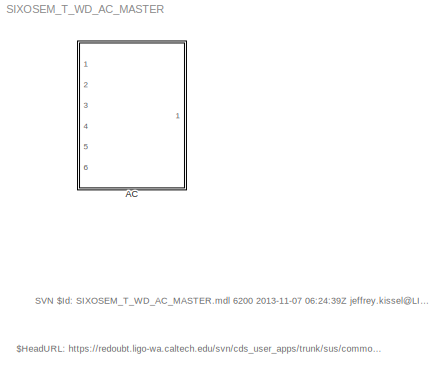
MODEL SIXOSEM_T_WD_AC_MASTER
KIND library
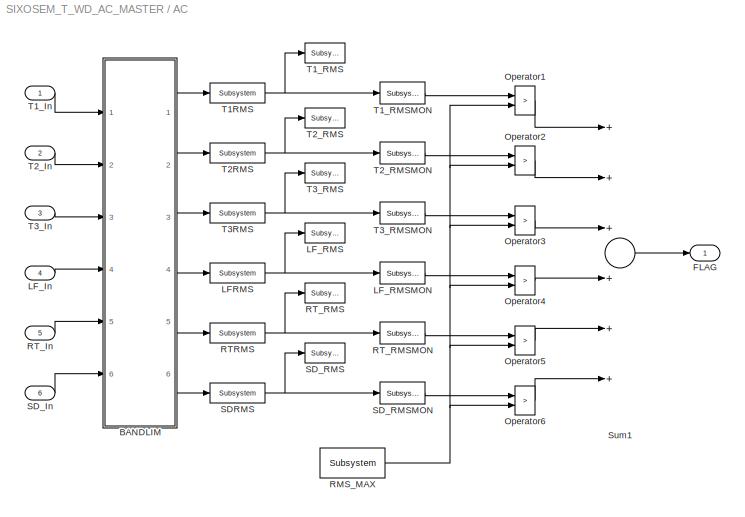
BLOCK [SubSystem] AC
  FunctionWithSeparateData = off
  MaskHideContents = off
  MinAlgLoopOccurrences = off
  Opaque = off
  Ports = [6, 1]
  PropExecContextOutsideSubsystem = off
  RTWSystemCode = Auto
  RequestExecContextInheritance = off
  SID = 1
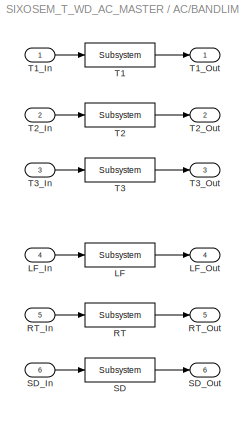
BLOCK [SubSystem] AC/BANDLIM
  FunctionWithSeparateData = off
  MaskHideContents = off
  MinAlgLoopOccurrences = off
  Opaque = off
  Ports = [6, 6]
  PropExecContextOutsideSubsystem = off
  RTWSystemCode = Auto
  RequestExecContextInheritance = off
  SID = 8
BLOCK [Reference] AC/BANDLIM/LF  REF=cdsFilt/Subsystem
  AttributesFormatString = %<Tag>
  Description = Purpose:                                                                                                                                                                                                                                  \nStandard CDS IIR filter module.                                                                                                                                     ...<+1302ch>  <repeated x6 — deduplicated; at blocks: LF, RT, SD, T1, T2, T3>
  FunctionWithSeparateData = off
  Ports = [1, 1]
  RTWMemSecDataConstants = Inherit from model
  RTWMemSecDataInternal = Inherit from model
  RTWMemSecDataParameters = Inherit from model
  RTWMemSecFuncExecute = Inherit from model
  RTWMemSecFuncInitTerm = Inherit from model
  SID = 18
  ShowPortLabels = FromPortIcon
  SourceBlock = cdsFilt/Subsystem
  SourceType = SubSystem
  SystemSampleTime = -1
  Tag = cdsFilt
BLOCK [Inport] AC/BANDLIM/LF_In
  IconDisplay = Port number
  Port = 4
  SID = 12
BLOCK [Outport] AC/BANDLIM/LF_Out
  IconDisplay = Port number
  Port = 4
  SID = 24
BLOCK [Reference] AC/BANDLIM/RT  REF=cdsFilt/Subsystem
  AttributesFormatString = %<Tag>
  FunctionWithSeparateData = off
  Ports = [1, 1]
  RTWMemSecDataConstants = Inherit from model
  RTWMemSecDataInternal = Inherit from model
  RTWMemSecDataParameters = Inherit from model
  RTWMemSecFuncExecute = Inherit from model
  RTWMemSecFuncInitTerm = Inherit from model
  SID = 19
  ShowPortLabels = FromPortIcon
  SourceBlock = cdsFilt/Subsystem
  SourceType = SubSystem
  SystemSampleTime = -1
  Tag = cdsFilt
BLOCK [Inport] AC/BANDLIM/RT_In
  IconDisplay = Port number
  Port = 5
  SID = 13
BLOCK [Outport] AC/BANDLIM/RT_Out
  IconDisplay = Port number
  Port = 5
  SID = 25
BLOCK [Reference] AC/BANDLIM/SD  REF=cdsFilt/Subsystem
  AttributesFormatString = %<Tag>
  FunctionWithSeparateData = off
  Ports = [1, 1]
  RTWMemSecDataConstants = Inherit from model
  RTWMemSecDataInternal = Inherit from model
  RTWMemSecDataParameters = Inherit from model
  RTWMemSecFuncExecute = Inherit from model
  RTWMemSecFuncInitTerm = Inherit from model
  SID = 20
  ShowPortLabels = FromPortIcon
  SourceBlock = cdsFilt/Subsystem
  SourceType = SubSystem
  SystemSampleTime = -1
  Tag = cdsFilt
BLOCK [Inport] AC/BANDLIM/SD_In
  IconDisplay = Port number
  Port = 6
  SID = 14
BLOCK [Outport] AC/BANDLIM/SD_Out
  IconDisplay = Port number
  Port = 6
  SID = 26
BLOCK [Reference] AC/BANDLIM/T1  REF=cdsFilt/Subsystem
  AttributesFormatString = %<Tag>
  FunctionWithSeparateData = off
  Ports = [1, 1]
  RTWMemSecDataConstants = Inherit from model
  RTWMemSecDataInternal = Inherit from model
  RTWMemSecDataParameters = Inherit from model
  RTWMemSecFuncExecute = Inherit from model
  RTWMemSecFuncInitTerm = Inherit from model
  SID = 15
  ShowPortLabels = FromPortIcon
  SourceBlock = cdsFilt/Subsystem
  SourceType = SubSystem
  SystemSampleTime = -1
  Tag = cdsFilt
BLOCK [Inport] AC/BANDLIM/T1_In
  IconDisplay = Port number
  SID = 9
BLOCK [Outport] AC/BANDLIM/T1_Out
  IconDisplay = Port number
  SID = 21
BLOCK [Reference] AC/BANDLIM/T2  REF=cdsFilt/Subsystem
  AttributesFormatString = %<Tag>
  FunctionWithSeparateData = off
  Ports = [1, 1]
  RTWMemSecDataConstants = Inherit from model
  RTWMemSecDataInternal = Inherit from model
  RTWMemSecDataParameters = Inherit from model
  RTWMemSecFuncExecute = Inherit from model
  RTWMemSecFuncInitTerm = Inherit from model
  SID = 16
  ShowPortLabels = FromPortIcon
  SourceBlock = cdsFilt/Subsystem
  SourceType = SubSystem
  SystemSampleTime = -1
  Tag = cdsFilt
BLOCK [Inport] AC/BANDLIM/T2_In
  IconDisplay = Port number
  Port = 2
  SID = 10
BLOCK [Outport] AC/BANDLIM/T2_Out
  IconDisplay = Port number
  Port = 2
  SID = 22
BLOCK [Reference] AC/BANDLIM/T3  REF=cdsFilt/Subsystem
  AttributesFormatString = %<Tag>
  FunctionWithSeparateData = off
  Ports = [1, 1]
  RTWMemSecDataConstants = Inherit from model
  RTWMemSecDataInternal = Inherit from model
  RTWMemSecDataParameters = Inherit from model
  RTWMemSecFuncExecute = Inherit from model
  RTWMemSecFuncInitTerm = Inherit from model
  SID = 17
  ShowPortLabels = FromPortIcon
  SourceBlock = cdsFilt/Subsystem
  SourceType = SubSystem
  SystemSampleTime = -1
  Tag = cdsFilt
BLOCK [Inport] AC/BANDLIM/T3_In
  IconDisplay = Port number
  Port = 3
  SID = 11
BLOCK [Outport] AC/BANDLIM/T3_Out
  IconDisplay = Port number
  Port = 3
  SID = 23
BLOCK [Outport] AC/FLAG
  IconDisplay = Port number
  SID = 53
BLOCK [Reference] AC/LFRMS  REF=cdsRms/Subsystem
  AttributesFormatString = %<Tag>
  Description = Purpose:                                   \nCalculate an RMS based on the input signal.
  FunctionWithSeparateData = off
  Ports = [1, 1]
  RTWMemSecDataConstants = Inherit from model
  RTWMemSecDataInternal = Inherit from model
  RTWMemSecDataParameters = Inherit from model
  RTWMemSecFuncExecute = Inherit from model
  RTWMemSecFuncInitTerm = Inherit from model
  SID = 36
  ShowPortLabels = FromPortIcon
  SourceBlock = cdsRms/Subsystem
  SourceType = SubSystem
  SystemSampleTime = -1
  Tag = cdsRms
BLOCK [Inport] AC/LF_In
  IconDisplay = Port number
  Port = 4
  SID = 5
BLOCK [Reference] AC/LF_RMS  REF=cdsTP/Subsystem
  AttributesFormatString = %<Tag>
  FunctionWithSeparateData = off
  Ports = [1]
  RTWMemSecDataConstants = Inherit from model
  RTWMemSecDataInternal = Inherit from model
  RTWMemSecDataParameters = Inherit from model
  RTWMemSecFuncExecute = Inherit from model
  RTWMemSecFuncInitTerm = Inherit from model
  SID = 37
  ShowPortLabels = FromPortIcon
  SourceBlock = cdsTP/Subsystem
  SourceType = SubSystem
  SystemSampleTime = -1
  Tag = Test Point
BLOCK [Reference] AC/LF_RMSMON  REF=cdsEpicsOut/Subsystem
  AttributesFormatString = %<Tag>
  Description = Purpose:                                          \nOutput a FE signal to an EPICS channel.           \n                                                  \nOperation:                                        \nTakes input value and passes it to EPICS record.  \n                                                  \nUsage:                                            \nName the part with the desired EPICS...<+14ch>  <repeated x6 — deduplicated; at blocks: LF_RMSMON, RT_RMSMON, SD_RMSMON, T1_RMSMON, T2_RMSMON, T3_RMSMON>
  FunctionWithSeparateData = off
  Ports = [1, 1]
  RTWMemSecDataConstants = Inherit from model
  RTWMemSecDataInternal = Inherit from model
  RTWMemSecDataParameters = Inherit from model
  RTWMemSecFuncExecute = Inherit from model
  RTWMemSecFuncInitTerm = Inherit from model
  SID = 38
  ShowPortLabels = FromPortIcon
  SourceBlock = cdsEpicsOut/Subsystem
  SourceType = SubSystem
  SystemSampleTime = -1
  Tag = cdsEpicsOutput
BLOCK [RelationalOperator] AC/Operator1
  InputSameDT = off
  Operator = >
  OutDataTypeStr = boolean
  Ports = [2, 1]
  SID = 39
BLOCK [RelationalOperator] AC/Operator2
  InputSameDT = off
  Operator = >
  OutDataTypeStr = boolean
  Ports = [2, 1]
  SID = 40
  ZeroCross = off
BLOCK [RelationalOperator] AC/Operator3
  InputSameDT = off
  Operator = >
  OutDataTypeStr = boolean
  Ports = [2, 1]
  SID = 41
BLOCK [RelationalOperator] AC/Operator4
  InputSameDT = off
  Operator = >
  OutDataTypeStr = boolean
  Ports = [2, 1]
  SID = 42
BLOCK [RelationalOperator] AC/Operator5
  InputSameDT = off
  Operator = >
  OutDataTypeStr = boolean
  Ports = [2, 1]
  SID = 43
BLOCK [RelationalOperator] AC/Operator6
  InputSameDT = off
  Operator = >
  OutDataTypeStr = boolean
  Ports = [2, 1]
  SID = 44
BLOCK [Reference] AC/RMS_MAX  REF=cdsEpicsIn/Subsystem
  AttributesFormatString = %<Tag>
  Description = Purpose:                                                                              \nCreate an EPICS input channel connection to the FE realtime controls.                 \n                                                                                      \nOperation:                                                                            \nOutputs value from an EPICS ai record. Value is ...<+266ch>
  FunctionWithSeparateData = off
  Ports = [0, 1]
  RTWMemSecDataConstants = Inherit from model
  RTWMemSecDataInternal = Inherit from model
  RTWMemSecDataParameters = Inherit from model
  RTWMemSecFuncExecute = Inherit from model
  RTWMemSecFuncInitTerm = Inherit from model
  SID = 45
  ShowPortLabels = FromPortIcon
  SourceBlock = cdsEpicsIn/Subsystem
  SourceType = SubSystem
  SystemSampleTime = -1
  Tag = cdsEpicsIn
BLOCK [Reference] AC/RTRMS  REF=cdsRms/Subsystem
  AttributesFormatString = %<Tag>
  Description = Purpose:                                   \nCalculate an RMS based on the input signal.
  FunctionWithSeparateData = off
  Ports = [1, 1]
  RTWMemSecDataConstants = Inherit from model
  RTWMemSecDataInternal = Inherit from model
  RTWMemSecDataParameters = Inherit from model
  RTWMemSecFuncExecute = Inherit from model
  RTWMemSecFuncInitTerm = Inherit from model
  SID = 46
  ShowPortLabels = FromPortIcon
  SourceBlock = cdsRms/Subsystem
  SourceType = SubSystem
  SystemSampleTime = -1
  Tag = cdsRms
BLOCK [Inport] AC/RT_In
  IconDisplay = Port number
  Port = 5
  SID = 6
BLOCK [Reference] AC/RT_RMS  REF=cdsTP/Subsystem
  AttributesFormatString = %<Tag>
  FunctionWithSeparateData = off
  Ports = [1]
  RTWMemSecDataConstants = Inherit from model
  RTWMemSecDataInternal = Inherit from model
  RTWMemSecDataParameters = Inherit from model
  RTWMemSecFuncExecute = Inherit from model
  RTWMemSecFuncInitTerm = Inherit from model
  SID = 47
  ShowPortLabels = FromPortIcon
  SourceBlock = cdsTP/Subsystem
  SourceType = SubSystem
  SystemSampleTime = -1
  Tag = Test Point
BLOCK [Reference] AC/RT_RMSMON  REF=cdsEpicsOut/Subsystem
  AttributesFormatString = %<Tag>
  FunctionWithSeparateData = off
  Ports = [1, 1]
  RTWMemSecDataConstants = Inherit from model
  RTWMemSecDataInternal = Inherit from model
  RTWMemSecDataParameters = Inherit from model
  RTWMemSecFuncExecute = Inherit from model
  RTWMemSecFuncInitTerm = Inherit from model
  SID = 48
  ShowPortLabels = FromPortIcon
  SourceBlock = cdsEpicsOut/Subsystem
  SourceType = SubSystem
  SystemSampleTime = -1
  Tag = cdsEpicsOutput
BLOCK [Reference] AC/SDRMS  REF=cdsRms/Subsystem
  AttributesFormatString = %<Tag>
  Description = Purpose:                                   \nCalculate an RMS based on the input signal.
  FunctionWithSeparateData = off
  Ports = [1, 1]
  RTWMemSecDataConstants = Inherit from model
  RTWMemSecDataInternal = Inherit from model
  RTWMemSecDataParameters = Inherit from model
  RTWMemSecFuncExecute = Inherit from model
  RTWMemSecFuncInitTerm = Inherit from model
  SID = 49
  ShowPortLabels = FromPortIcon
  SourceBlock = cdsRms/Subsystem
  SourceType = SubSystem
  SystemSampleTime = -1
  Tag = cdsRms
BLOCK [Inport] AC/SD_In
  IconDisplay = Port number
  Port = 6
  SID = 7
BLOCK [Reference] AC/SD_RMS  REF=cdsTP/Subsystem
  AttributesFormatString = %<Tag>
  FunctionWithSeparateData = off
  Ports = [1]
  RTWMemSecDataConstants = Inherit from model
  RTWMemSecDataInternal = Inherit from model
  RTWMemSecDataParameters = Inherit from model
  RTWMemSecFuncExecute = Inherit from model
  RTWMemSecFuncInitTerm = Inherit from model
  SID = 50
  ShowPortLabels = FromPortIcon
  SourceBlock = cdsTP/Subsystem
  SourceType = SubSystem
  SystemSampleTime = -1
  Tag = Test Point
BLOCK [Reference] AC/SD_RMSMON  REF=cdsEpicsOut/Subsystem
  AttributesFormatString = %<Tag>
  FunctionWithSeparateData = off
  Ports = [1, 1]
  RTWMemSecDataConstants = Inherit from model
  RTWMemSecDataInternal = Inherit from model
  RTWMemSecDataParameters = Inherit from model
  RTWMemSecFuncExecute = Inherit from model
  RTWMemSecFuncInitTerm = Inherit from model
  SID = 51
  ShowPortLabels = FromPortIcon
  SourceBlock = cdsEpicsOut/Subsystem
  SourceType = SubSystem
  SystemSampleTime = -1
  Tag = cdsEpicsOutput
BLOCK [Sum] AC/Sum1
  InputSameDT = off
  Inputs = ++++++
  OutDataTypeStr = Inherit: Inherit via internal rule
  Ports = [6, 1]
  SID = 52
  SaturateOnIntegerOverflow = off
BLOCK [Reference] AC/T1RMS  REF=cdsRms/Subsystem
  AttributesFormatString = %<Tag>
  Description = Purpose:                                   \nCalculate an RMS based on the input signal.
  FunctionWithSeparateData = off
  Ports = [1, 1]
  RTWMemSecDataConstants = Inherit from model
  RTWMemSecDataInternal = Inherit from model
  RTWMemSecDataParameters = Inherit from model
  RTWMemSecFuncExecute = Inherit from model
  RTWMemSecFuncInitTerm = Inherit from model
  SID = 27
  ShowPortLabels = FromPortIcon
  SourceBlock = cdsRms/Subsystem
  SourceType = SubSystem
  SystemSampleTime = -1
  Tag = cdsRms
BLOCK [Inport] AC/T1_In
  IconDisplay = Port number
  SID = 2
BLOCK [Reference] AC/T1_RMS  REF=cdsTP/Subsystem
  AttributesFormatString = %<Tag>
  FunctionWithSeparateData = off
  Ports = [1]
  RTWMemSecDataConstants = Inherit from model
  RTWMemSecDataInternal = Inherit from model
  RTWMemSecDataParameters = Inherit from model
  RTWMemSecFuncExecute = Inherit from model
  RTWMemSecFuncInitTerm = Inherit from model
  SID = 28
  ShowPortLabels = FromPortIcon
  SourceBlock = cdsTP/Subsystem
  SourceType = SubSystem
  SystemSampleTime = -1
  Tag = Test Point
BLOCK [Reference] AC/T1_RMSMON  REF=cdsEpicsOut/Subsystem
  AttributesFormatString = %<Tag>
  FunctionWithSeparateData = off
  Ports = [1, 1]
  RTWMemSecDataConstants = Inherit from model
  RTWMemSecDataInternal = Inherit from model
  RTWMemSecDataParameters = Inherit from model
  RTWMemSecFuncExecute = Inherit from model
  RTWMemSecFuncInitTerm = Inherit from model
  SID = 29
  ShowPortLabels = FromPortIcon
  SourceBlock = cdsEpicsOut/Subsystem
  SourceType = SubSystem
  SystemSampleTime = -1
  Tag = cdsEpicsOutput
BLOCK [Reference] AC/T2RMS  REF=cdsRms/Subsystem
  AttributesFormatString = %<Tag>
  Description = Purpose:                                   \nCalculate an RMS based on the input signal.
  FunctionWithSeparateData = off
  Ports = [1, 1]
  RTWMemSecDataConstants = Inherit from model
  RTWMemSecDataInternal = Inherit from model
  RTWMemSecDataParameters = Inherit from model
  RTWMemSecFuncExecute = Inherit from model
  RTWMemSecFuncInitTerm = Inherit from model
  SID = 30
  ShowPortLabels = FromPortIcon
  SourceBlock = cdsRms/Subsystem
  SourceType = SubSystem
  SystemSampleTime = -1
  Tag = cdsRms
BLOCK [Inport] AC/T2_In
  IconDisplay = Port number
  Port = 2
  SID = 3
BLOCK [Reference] AC/T2_RMS  REF=cdsTP/Subsystem
  AttributesFormatString = %<Tag>
  FunctionWithSeparateData = off
  Ports = [1]
  RTWMemSecDataConstants = Inherit from model
  RTWMemSecDataInternal = Inherit from model
  RTWMemSecDataParameters = Inherit from model
  RTWMemSecFuncExecute = Inherit from model
  RTWMemSecFuncInitTerm = Inherit from model
  SID = 31
  ShowPortLabels = FromPortIcon
  SourceBlock = cdsTP/Subsystem
  SourceType = SubSystem
  SystemSampleTime = -1
  Tag = Test Point
BLOCK [Reference] AC/T2_RMSMON  REF=cdsEpicsOut/Subsystem
  AttributesFormatString = %<Tag>
  FunctionWithSeparateData = off
  Ports = [1, 1]
  RTWMemSecDataConstants = Inherit from model
  RTWMemSecDataInternal = Inherit from model
  RTWMemSecDataParameters = Inherit from model
  RTWMemSecFuncExecute = Inherit from model
  RTWMemSecFuncInitTerm = Inherit from model
  SID = 32
  ShowPortLabels = FromPortIcon
  SourceBlock = cdsEpicsOut/Subsystem
  SourceType = SubSystem
  SystemSampleTime = -1
  Tag = cdsEpicsOutput
BLOCK [Reference] AC/T3RMS  REF=cdsRms/Subsystem
  AttributesFormatString = %<Tag>
  Description = Purpose:                                   \nCalculate an RMS based on the input signal.
  FunctionWithSeparateData = off
  Ports = [1, 1]
  RTWMemSecDataConstants = Inherit from model
  RTWMemSecDataInternal = Inherit from model
  RTWMemSecDataParameters = Inherit from model
  RTWMemSecFuncExecute = Inherit from model
  RTWMemSecFuncInitTerm = Inherit from model
  SID = 33
  ShowPortLabels = FromPortIcon
  SourceBlock = cdsRms/Subsystem
  SourceType = SubSystem
  SystemSampleTime = -1
  Tag = cdsRms
BLOCK [Inport] AC/T3_In
  IconDisplay = Port number
  Port = 3
  SID = 4
BLOCK [Reference] AC/T3_RMS  REF=cdsTP/Subsystem
  AttributesFormatString = %<Tag>
  FunctionWithSeparateData = off
  Ports = [1]
  RTWMemSecDataConstants = Inherit from model
  RTWMemSecDataInternal = Inherit from model
  RTWMemSecDataParameters = Inherit from model
  RTWMemSecFuncExecute = Inherit from model
  RTWMemSecFuncInitTerm = Inherit from model
  SID = 34
  ShowPortLabels = FromPortIcon
  SourceBlock = cdsTP/Subsystem
  SourceType = SubSystem
  SystemSampleTime = -1
  Tag = Test Point
BLOCK [Reference] AC/T3_RMSMON  REF=cdsEpicsOut/Subsystem
  AttributesFormatString = %<Tag>
  FunctionWithSeparateData = off
  Ports = [1, 1]
  RTWMemSecDataConstants = Inherit from model
  RTWMemSecDataInternal = Inherit from model
  RTWMemSecDataParameters = Inherit from model
  RTWMemSecFuncExecute = Inherit from model
  RTWMemSecFuncInitTerm = Inherit from model
  SID = 35
  ShowPortLabels = FromPortIcon
  SourceBlock = cdsEpicsOut/Subsystem
  SourceType = SubSystem
  SystemSampleTime = -1
  Tag = cdsEpicsOutput
ANNOTATION (root): $HeadURL: https://redoubt.ligo-wa.caltech.edu/svn/cds_user_apps/trunk/sus/common/models/SIXOSEM_T_WD_AC_MASTER.mdl $
ANNOTATION (root): SVN $Id: SIXOSEM_T_WD_AC_MASTER.mdl 6200 2013-11-07 06:24:39Z <email> $
LINE AC/BANDLIM/LF:1 -> AC/BANDLIM/LF_Out:1
LINE AC/BANDLIM/LF_In:1 -> AC/BANDLIM/LF:1
LINE AC/BANDLIM/RT:1 -> AC/BANDLIM/RT_Out:1
LINE AC/BANDLIM/RT_In:1 -> AC/BANDLIM/RT:1
LINE AC/BANDLIM/SD:1 -> AC/BANDLIM/SD_Out:1
LINE AC/BANDLIM/SD_In:1 -> AC/BANDLIM/SD:1
LINE AC/BANDLIM/T1:1 -> AC/BANDLIM/T1_Out:1
LINE AC/BANDLIM/T1_In:1 -> AC/BANDLIM/T1:1
LINE AC/BANDLIM/T2:1 -> AC/BANDLIM/T2_Out:1
LINE AC/BANDLIM/T2_In:1 -> AC/BANDLIM/T2:1
LINE AC/BANDLIM/T3:1 -> AC/BANDLIM/T3_Out:1
LINE AC/BANDLIM/T3_In:1 -> AC/BANDLIM/T3:1
LINE AC/BANDLIM:1 -> AC/T1RMS:1
LINE AC/BANDLIM:2 -> AC/T2RMS:1
LINE AC/BANDLIM:3 -> AC/T3RMS:1
LINE AC/BANDLIM:4 -> AC/LFRMS:1
LINE AC/BANDLIM:5 -> AC/RTRMS:1
LINE AC/BANDLIM:6 -> AC/SDRMS:1
NET AC/LFRMS:1 -> AC/LF_RMS:1, AC/LF_RMSMON:1
LINE AC/LF_In:1 -> AC/BANDLIM:4
LINE AC/LF_RMSMON:1 -> AC/Operator4:1
LINE AC/Operator1:1 -> AC/Sum1:1
LINE AC/Operator2:1 -> AC/Sum1:2
LINE AC/Operator3:1 -> AC/Sum1:3
LINE AC/Operator4:1 -> AC/Sum1:4
LINE AC/Operator5:1 -> AC/Sum1:5
LINE AC/Operator6:1 -> AC/Sum1:6
NET AC/RMS_MAX:1 -> AC/Operator1:2, AC/Operator2:2, AC/Operator3:2, AC/Operator4:2, AC/Operator5:2, AC/Operator6:2
NET AC/RTRMS:1 -> AC/RT_RMS:1, AC/RT_RMSMON:1
LINE AC/RT_In:1 -> AC/BANDLIM:5
LINE AC/RT_RMSMON:1 -> AC/Operator5:1
NET AC/SDRMS:1 -> AC/SD_RMS:1, AC/SD_RMSMON:1
LINE AC/SD_In:1 -> AC/BANDLIM:6
LINE AC/SD_RMSMON:1 -> AC/Operator6:1
LINE AC/Sum1:1 -> AC/FLAG:1
NET AC/T1RMS:1 -> AC/T1_RMS:1, AC/T1_RMSMON:1
LINE AC/T1_In:1 -> AC/BANDLIM:1
LINE AC/T1_RMSMON:1 -> AC/Operator1:1
NET AC/T2RMS:1 -> AC/T2_RMS:1, AC/T2_RMSMON:1
LINE AC/T2_In:1 -> AC/BANDLIM:2
LINE AC/T2_RMSMON:1 -> AC/Operator2:1
NET AC/T3RMS:1 -> AC/T3_RMS:1, AC/T3_RMSMON:1
LINE AC/T3_In:1 -> AC/BANDLIM:3
LINE AC/T3_RMSMON:1 -> AC/Operator3:1
note: NET lines group one-source signal fan-out (src -> all destinations, sorted); 1:1 wires keep LINE
